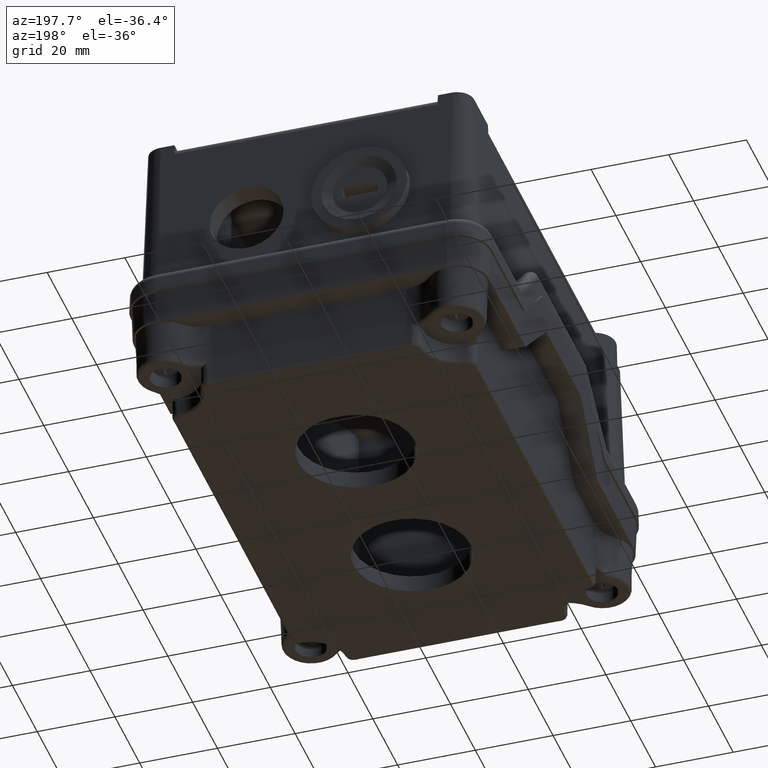
[diagram: clean part render]
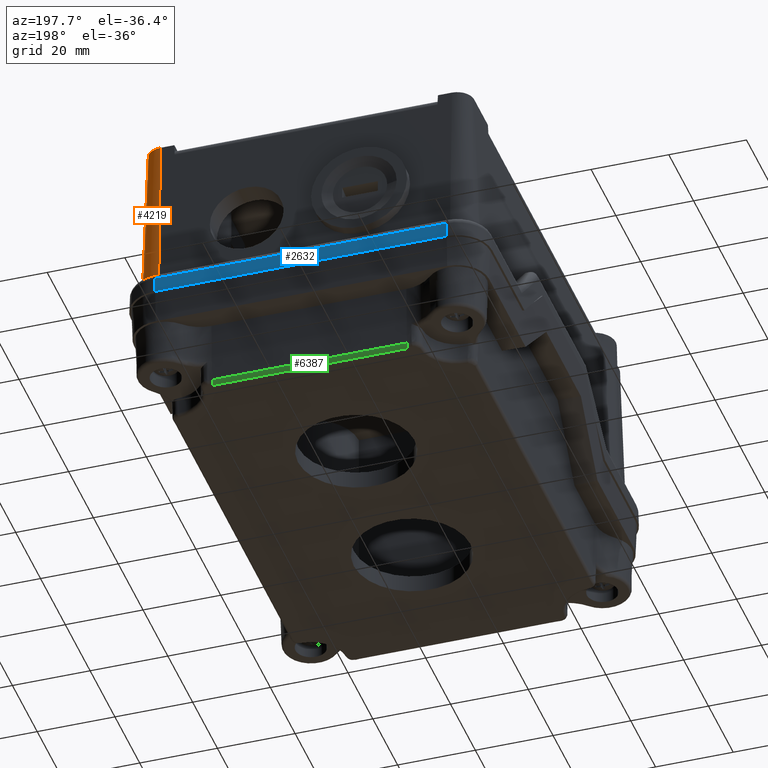
[diagram: same view with three faces highlighted in distinct colors, each labeled with its STEP entity id]
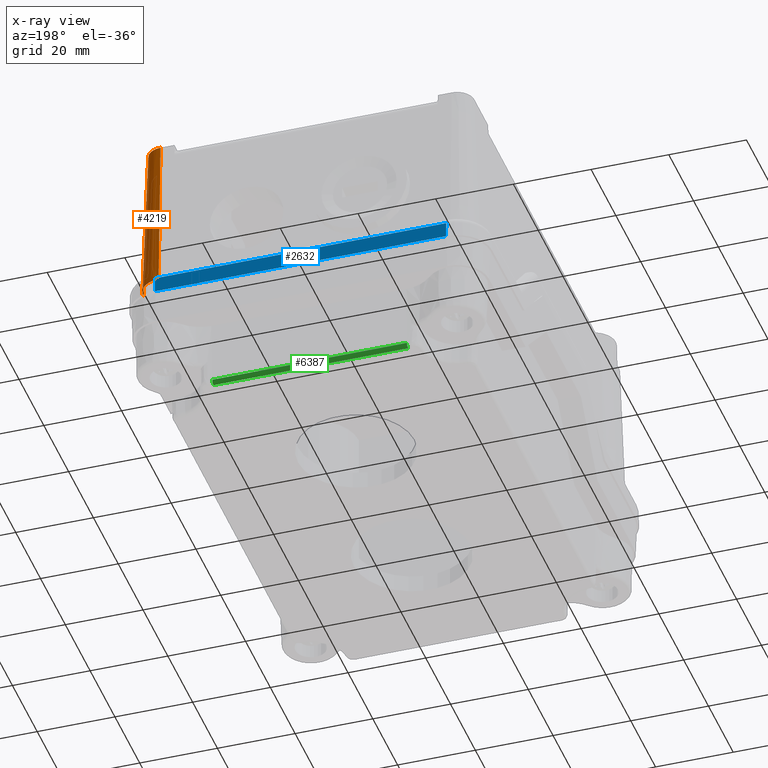
[diagram: x-ray of the same camera — body ghosted, the three highlighted faces saturated]
A machine part, auxiliary view with three faces highlighted in distinct colors.
The next image is the same camera in x-ray (body ghosted, the three faces saturated) — at least one of them is partly hidden behind the body in this view.
Their STEP definitions:

[orange] entity #4219 — the highlighted conical surface has half-angle 2 deg.
#2977=CARTESIAN_POINT('',(68.885091562884426,103.458310843324310,46.999999999999993));
#2978=VERTEX_POINT('',#2977);
#2985=CARTESIAN_POINT('',(68.885091562884426,104.890062392485970,6.000000000000014));
#2986=VERTEX_POINT('',#2985);
#2987=CARTESIAN_POINT('',(68.885091562884426,104.890062392485970,6.000000000000014));
#2988=DIRECTION('',(0.0,-0.034899496702501,0.999390827019096));
#2989=VECTOR('',#2988,41.024991316251672);
#2990=LINE('',#2987,#2989);
#2991=EDGE_CURVE('',#2986,#2978,#2990,.T.);
#3720=CARTESIAN_POINT('',(73.243815396772234,99.099587009436490,46.999999999999993));
#3721=VERTEX_POINT('',#3720);
#3730=CARTESIAN_POINT('',(68.885091562884426,99.099587009436490,47.0));
#3731=DIRECTION('',(0.0,0.0,-1.0));
#3732=DIRECTION('',(1.0,0.0,0.0));
#3733=AXIS2_PLACEMENT_3D('',#3730,#3731,#3732);
#3734=CIRCLE('',#3733,4.358723833887817);
#3735=EDGE_CURVE('',#2978,#3721,#3734,.T.);
#4061=CARTESIAN_POINT('',(74.675566945933895,99.099587009436490,6.000000000000014));
#4062=VERTEX_POINT('',#4061);
#4069=CARTESIAN_POINT('',(74.675566945933895,99.099587009436490,6.000000000000014));
#4070=DIRECTION('',(-0.034899496702501,0.0,0.999390827019096));
#4071=VECTOR('',#4070,41.024991316251672);
#4072=LINE('',#4069,#4071);
#4073=EDGE_CURVE('',#4062,#3721,#4072,.T.);
#4102=CARTESIAN_POINT('',(68.885091562884426,99.099587009436490,6.000000000000014));
#4103=DIRECTION('',(0.0,0.0,1.0));
#4104=DIRECTION('',(1.0,0.0,0.0));
#4105=AXIS2_PLACEMENT_3D('',#4102,#4103,#4104);
#4106=CIRCLE('',#4105,5.790475383049475);
#4107=EDGE_CURVE('',#4062,#2986,#4106,.T.);
#4208=CARTESIAN_POINT('',(68.885091562884426,99.099587009436490,46.000000000000007));
#4209=DIRECTION('',(0.0,0.0,-1.0));
#4210=DIRECTION('',(1.0,0.0,0.0));
#4211=AXIS2_PLACEMENT_3D('',#4208,#4209,#4210);
#4212=CONICAL_SURFACE('',#4211,4.393644603379566,2.0);
#4213=ORIENTED_EDGE('',*,*,#4107,.T.);
#4214=ORIENTED_EDGE('',*,*,#2991,.T.);
#4215=ORIENTED_EDGE('',*,*,#3735,.T.);
#4216=ORIENTED_EDGE('',*,*,#4073,.F.);
#4217=EDGE_LOOP('',(#4213,#4214,#4215,#4216));
#4218=FACE_OUTER_BOUND('',#4217,.T.);
#4219=ADVANCED_FACE('',(#4218),#4212,.T.);

[blue] entity #2632 — the highlighted planar face has unit normal (0, 0.9994, 0.0349).
#2163=CARTESIAN_POINT('',(68.885091562884369,107.957466496910040,4.069798993405015));
#2164=VERTEX_POINT('',#2163);
#2237=CARTESIAN_POINT('',(-6.114908437115647,107.957466496910060,4.069798993405016));
#2238=VERTEX_POINT('',#2237);
#2255=CARTESIAN_POINT('',(68.885091562884369,107.957466496910040,4.069798993405015));
#2256=DIRECTION('',(-1.0,0.0,0.0));
#2257=VECTOR('',#2256,75.000000000000014);
#2258=LINE('',#2255,#2257);
#2259=EDGE_CURVE('',#2164,#2238,#2258,.T.);
#2583=CARTESIAN_POINT('',(-6.114908437115647,108.099587009436500,0.0));
#2584=VERTEX_POINT('',#2583);
#2585=CARTESIAN_POINT('',(-6.114908437115647,108.099587009436500,0.0));
#2586=DIRECTION('',(0.0,-0.034899496702502,0.999390827019096));
#2587=VECTOR('',#2586,4.072279716178796);
#2588=LINE('',#2585,#2587);
#2589=EDGE_CURVE('',#2584,#2238,#2588,.T.);
#2609=CARTESIAN_POINT('',(-6.114908437115647,108.099587009436500,0.0));
#2610=DIRECTION('',(0.0,0.999390827019096,0.034899496702501));
#2611=DIRECTION('',(-1.0,0.0,0.0));
#2612=AXIS2_PLACEMENT_3D('',#2609,#2610,#2611);
#2613=PLANE('',#2612);
#2614=ORIENTED_EDGE('',*,*,#2259,.F.);
#2615=CARTESIAN_POINT('',(68.885091562884369,108.099587009436500,0.0));
#2616=VERTEX_POINT('',#2615);
#2617=CARTESIAN_POINT('',(68.885091562884369,108.099587009436500,0.0));
#2618=DIRECTION('',(0.0,-0.034899496702505,0.999390827019096));
#2619=VECTOR('',#2618,4.072279716178796);
#2620=LINE('',#2617,#2619);
#2621=EDGE_CURVE('',#2616,#2164,#2620,.T.);
#2622=ORIENTED_EDGE('',*,*,#2621,.F.);
#2623=CARTESIAN_POINT('',(68.885091562884369,108.099587009436500,0.0));
#2624=DIRECTION('',(-1.0,0.0,0.0));
#2625=VECTOR('',#2624,75.000000000000014);
#2626=LINE('',#2623,#2625);
#2627=EDGE_CURVE('',#2616,#2584,#2626,.T.);
#2628=ORIENTED_EDGE('',*,*,#2627,.T.);
#2629=ORIENTED_EDGE('',*,*,#2589,.T.);
#2630=EDGE_LOOP('',(#2614,#2622,#2628,#2629));
#2631=FACE_OUTER_BOUND('',#2630,.T.);
#2632=ADVANCED_FACE('',(#2631),#2613,.T.);

[green] entity #6387 — the highlighted cylindrical surface (edge-blend (fillet) strip) has radius 1 mm, axis along (1, -0, -0).
#4830=CARTESIAN_POINT('',(62.842565090986717,51.321516006963144,39.534899496702501));
#4831=VERTEX_POINT('',#4830);
#5526=CARTESIAN_POINT('',(12.723991961410805,51.321516006963137,39.534899496702501));
#5527=VERTEX_POINT('',#5526);
#6303=CARTESIAN_POINT('',(12.723991961410807,50.322125179943953,40.500000000000000));
#6304=VERTEX_POINT('',#6303);
#6305=CARTESIAN_POINT('',(12.723991961410807,50.322125179943953,39.500000000000000));
#6306=DIRECTION('',(-1.0,0.0,0.0));
#6307=DIRECTION('',(0.0,0.0,1.0));
#6308=AXIS2_PLACEMENT_3D('',#6305,#6306,#6307);
#6309=CIRCLE('',#6308,1.000000000000001);
#6310=EDGE_CURVE('',#6304,#5527,#6309,.T.);
#6358=CARTESIAN_POINT('',(50.312921808592741,50.322125179944052,39.500000000000000));
#6359=DIRECTION('',(-1.0,0.0,0.0));
#6360=DIRECTION('',(0.0,0.694658370459001,0.719339800338648));
#6361=AXIS2_PLACEMENT_3D('',#6358,#6359,#6360);
#6362=CYLINDRICAL_SURFACE('',#6361,1.0);
#6363=CARTESIAN_POINT('',(62.842565090986717,50.322125179944052,40.500000000000000));
#6364=VERTEX_POINT('',#6363);
#6365=CARTESIAN_POINT('',(62.842565090986717,50.322125179944052,39.500000000000000));
#6366=DIRECTION('',(-1.0,0.0,0.0));
#6367=DIRECTION('',(0.0,0.0,1.0));
#6368=AXIS2_PLACEMENT_3D('',#6365,#6366,#6367);
#6369=CIRCLE('',#6368,0.999999999999996);
#6370=EDGE_CURVE('',#6364,#4831,#6369,.T.);
#6371=ORIENTED_EDGE('',*,*,#6370,.T.);
#6372=CARTESIAN_POINT('',(62.842565090986717,51.321516006963144,39.534899496702501));
#6373=DIRECTION('',(-1.0,0.0,0.0));
#6374=VECTOR('',#6373,50.118573129575914);
#6375=LINE('',#6372,#6374);
#6376=EDGE_CURVE('',#4831,#5527,#6375,.T.);
#6377=ORIENTED_EDGE('',*,*,#6376,.T.);
#6378=ORIENTED_EDGE('',*,*,#6310,.F.);
#6379=CARTESIAN_POINT('',(12.723991961410807,50.322125179943953,40.500000000000000));
#6380=DIRECTION('',(1.0,0.0,0.0));
#6381=VECTOR('',#6380,50.118573129575907);
#6382=LINE('',#6379,#6381);
#6383=EDGE_CURVE('',#6304,#6364,#6382,.T.);
#6384=ORIENTED_EDGE('',*,*,#6383,.T.);
#6385=EDGE_LOOP('',(#6371,#6377,#6378,#6384));
#6386=FACE_OUTER_BOUND('',#6385,.T.);
#6387=ADVANCED_FACE('',(#6386),#6362,.T.);